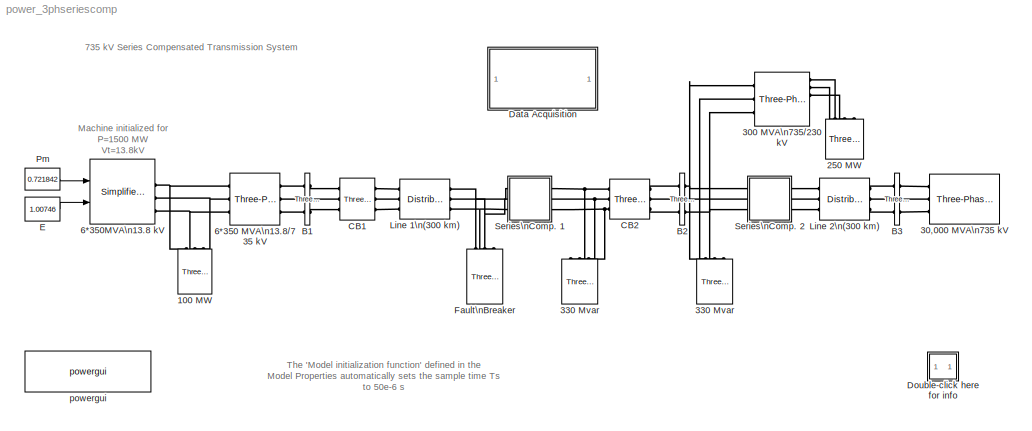
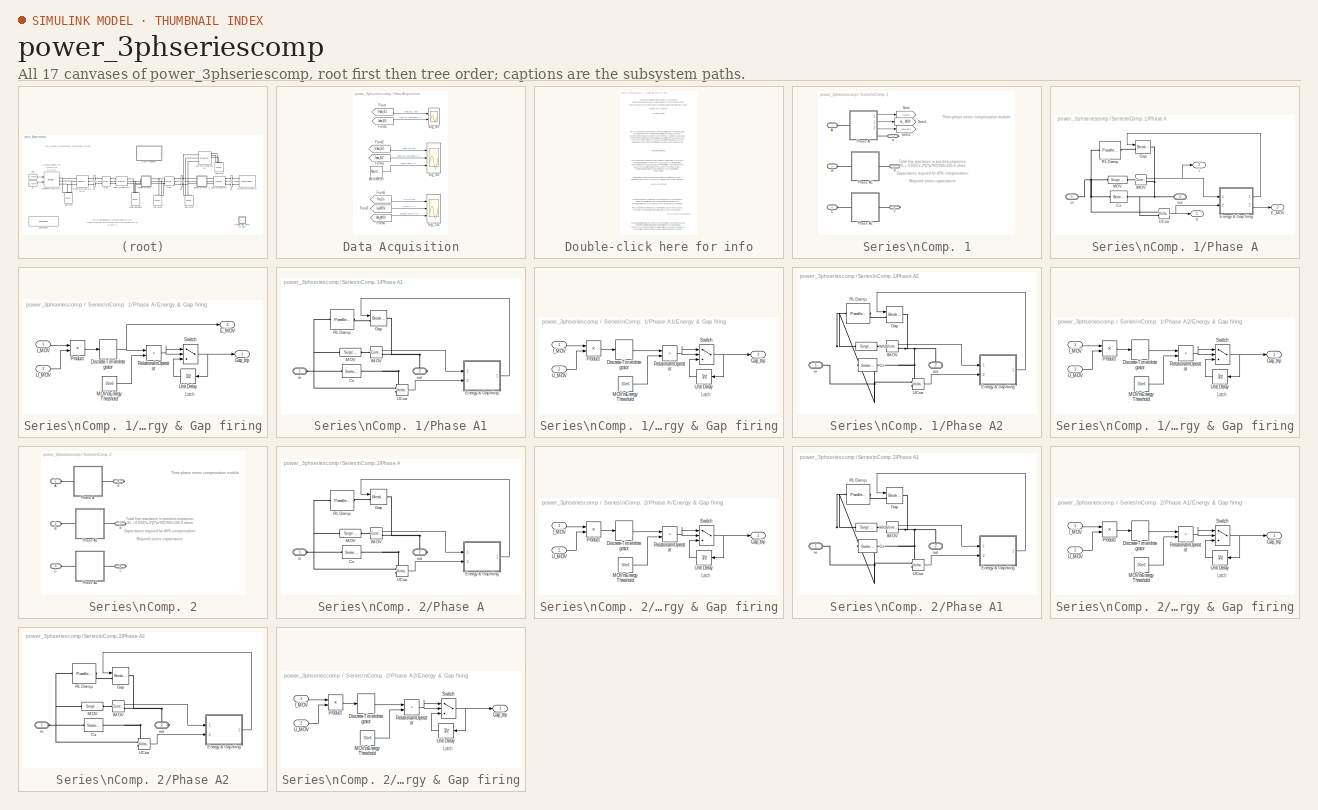
[diagram: thumbnail index - all 17 canvases of the model, root first then tree order]
MODEL power_3phseriescomp
KIND model
CONFIG InitFcn = Ts=50e-6;
BLOCK [Reference] 100 MW  REF=powerlib/Elements/Three-Phase\nSeries RLC Load
  ActivePower = 100e6
  AttributesFormatString = \\n
  CapacitivePower = 0
  Configuration = Y (grounded)
  InductivePower = 0
  LConnTagsString = A|B|C
  LeftPortType = p1
  Measurements = None
  NominalFrequency = 60
  NominalVoltage = 13.8e3
  PhysicalDomain = powersysdomain
  Ports = [0, 0, 0, 0, 0, 3]
  RightPortType = p1
  SourceBlock = powerlib/Elements/Three-Phase\nSeries RLC Load
  SourceType = Three-Phase Series RLC Load
  SubClassName = unknown
BLOCK [Reference] 250 MW  REF=powerlib/Elements/Three-Phase\nSeries RLC Load
  ActivePower = 250e6
  AttributesFormatString = \\n
  CapacitivePower = 0
  Configuration = Y (grounded)
  InductivePower = 0
  LConnTagsString = A|B|C
  LeftPortType = p1
  Measurements = None
  NominalFrequency = 60
  NominalVoltage = 230e3
  PhysicalDomain = powersysdomain
  Ports = [0, 0, 0, 0, 0, 3]
  RightPortType = p1
  SourceBlock = powerlib/Elements/Three-Phase\nSeries RLC Load
  SourceType = Three-Phase Series RLC Load
  SubClassName = unknown
BLOCK [Reference] 30,000 MVA\n735 kV  REF=powerlib/Electrical\nSources/Three-Phase Source
  BaseVoltage = 735e3
  Frequency = 60
  Inductance = 735^2/30000/377
  InternalConnection = Yg
  PhaseAngle = 0
  Ports = [0, 0, 0, 0, 0, 0, 3]
  Resistance = 735^2/30000/10
  ShortCircuitLevel = 30000e6
  ShowPortLabels = on
  SourceBlock = powerlib/Electrical\nSources/Three-Phase Source
  SourceType = Three-Phase Source
  SpecifyImpedance = on
  Voltage = 735e3
  XRratio = 10
BLOCK [Reference] 300 MVA\n735//230 kV  REF=powerlib/Elements/Three-Phase\nTransformer\n(Three Windings)
  AttributesFormatString = \\n
  DataFile = 'hysteresis'
  Hysteresis = off
  InitialFluxes = [-1.02651077007071 0.48004961184079 0.546461158229956]
  Lm = 1000
  Measurements = None
  NominalPower = [ 300e6 , 60 ]
  Ports = [0, 0, 0, 0, 0, 3, 6]
  Rm = 500
  Saturation = [  0,0  ;  0.0012,1.2  ;  1.0,1.45 ]
  SetInitialFlux = off
  SetSaturation = on
  ShowPortLabels = on
  SourceBlock = powerlib/Elements/Three-Phase\nTransformer\n(Three Windings)
  SourceType = Three-Phase Transformer (Three Windings)
  TransfoNumber = 0
  Winding1 = [ 735e3 , 0.002 , 0.15 ]
  Winding1Connection = Yg
  Winding2 = [ 230e3 , 0.002 , 0 ]
  Winding2Connection = Yg
  Winding3 = [ 25e3 , 0.05 , 0.20 ]
  Winding3Connection = Delta (D1)
BLOCK [Reference] 330 Mvar  REF=powerlib/Elements/Three-Phase\nSeries RLC Load
  ActivePower = 330e6/250
  AttributesFormatString = \\n
  CapacitivePower = 0
  Configuration = Y (grounded)
  InductivePower = 330e6
  LConnTagsString = A|B|C
  LeftPortType = p1
  Measurements = None
  NominalFrequency = 60
  NominalVoltage = 735e3
  PhysicalDomain = powersysdomain
  Ports = [0, 0, 0, 0, 0, 3]
  RightPortType = p1
  SourceBlock = powerlib/Elements/Three-Phase\nSeries RLC Load
  SourceType = Three-Phase Series RLC Load
  SubClassName = unknown
BLOCK [Reference] 330 Mvar   REF=powerlib/Elements/Three-Phase\nSeries RLC Load
  ActivePower = 330e6/250
  AttributesFormatString = \\n
  CapacitivePower = 0
  Configuration = Y (grounded)
  InductivePower = 330e6
  LConnTagsString = A|B|C
  LeftPortType = p1
  Measurements = None
  NominalFrequency = 60
  NominalVoltage = 735e3
  PhysicalDomain = powersysdomain
  Ports = [0, 0, 0, 0, 0, 3]
  RightPortType = p1
  SourceBlock = powerlib/Elements/Three-Phase\nSeries RLC Load
  SourceType = Three-Phase Series RLC Load
  SubClassName = unknown
BLOCK [Reference] 6*350 MVA\n13.8//735 kV  REF=powerlib/Elements/Three-Phase\nTransformer\n(Two Windings)
  AttributesFormatString = \\n
  DataFile = 'hysteresis'
  Hysteresis = off
  InitialFluxes = [ 0.8 , -0.8 , 0.7 ]
  Lm = 500
  Measurements = None
  NominalPower = [ 6*350e6 , 60 ]
  Ports = [0, 0, 0, 0, 0, 3, 3]
  Rm = 500
  Saturation = [ 0,0 ; 0.0024,1.2 ; 1.0,1.52 ]
  SetInitialFlux = off
  SetSaturation = off
  ShowPortLabels = on
  SourceBlock = powerlib/Elements/Three-Phase\nTransformer\n(Two Windings)
  SourceType = Three-Phase Transformer (Two Windings)
  TransfoNumber = 0
  Winding1 = [ 13.8e3 , 0.002 , 0.08 ]
  Winding1Connection = Delta (D1)
  Winding2 = [ 735e3 , 0.002 , 0.08 ]
  Winding2Connection = Yg
BLOCK [Reference] 6*350MVA\n13.8 kV  REF=powerlib/Machines/Simplified Synchronous\nMachine pu Units
  AttributesFormatString = \\n
  ConnectionType = 3-wire Y
  InitialConditions = [0 3.29695 0.717757 0.717757 0.717757 -0.0992806 -120.099 119.901]
  InternalRL = [ 0.22/15  0.22 ]
  LoadFlowParameters = [1,0,0,0,0]
  Mechanical = [ inf,0,2 ]
  NominalParameters = [ 6*350e6 13.8e3  60 ]
  Ports = [2, 1, 0, 0, 0, 0, 3]
  ShowPortLabels = on
  SourceBlock = powerlib/Machines/Simplified Synchronous\nMachine pu Units
  SourceType = Simplified Synchronous Machine
  Units = 0
BLOCK [Reference] B1  REF=powerlib/Measurements/Three-Phase\nV-I Measurement
  CurrentMeasurement = yes
  Ipu = on
  LabelI = Iabc_B1
  LabelV = Vabc_B1
  OutputType = Complex
  PSBequivalent = 0
  Pbase = 100e6
  PhasorSimulation = off
  Ports = [0, 0, 0, 0, 0, 3, 3]
  SetLabelI = on
  SetLabelV = on
  ShowPortLabels = on
  SourceBlock = powerlib/Measurements/Three-Phase\nV-I Measurement
  SourceType = Three-Phase VI Measurement
  Vbase = 735e3
  VoltageMeasurement = phase-to-ground
  Vpu = on
BLOCK [Reference] B2  REF=powerlib/Measurements/Three-Phase\nV-I Measurement
  CurrentMeasurement = yes
  Ipu = on
  LabelI = Iabc_B2
  LabelV = Vabc_B2
  OutputType = Complex
  PSBequivalent = 0
  Pbase = 100e6
  PhasorSimulation = off
  Ports = [0, 0, 0, 0, 0, 3, 3]
  SetLabelI = on
  SetLabelV = on
  ShowPortLabels = on
  SourceBlock = powerlib/Measurements/Three-Phase\nV-I Measurement
  SourceType = Three-Phase VI Measurement
  Vbase = 735e3
  VoltageMeasurement = phase-to-ground
  Vpu = on
BLOCK [Reference] B3  REF=powerlib/Measurements/Three-Phase\nV-I Measurement
  CurrentMeasurement = no
  Ipu = on
  LabelI = Iabc_B3
  LabelV = Vabc_B3
  OutputType = Complex
  PSBequivalent = 0
  Pbase = 100e6
  PhasorSimulation = off
  Ports = [0, 0, 0, 0, 0, 3, 3]
  SetLabelI = on
  SetLabelV = on
  ShowPortLabels = on
  SourceBlock = powerlib/Measurements/Three-Phase\nV-I Measurement
  SourceType = Three-Phase VI Measurement
  Vbase = 735e3
  VoltageMeasurement = no
  Vpu = on
BLOCK [Reference] CB1  REF=powerlib/Elements/Three-Phase Breaker
  AttributesFormatString = \\n
  BreakerResistance = 0.001
  External = off
  InitialState = closed
  Measurements = None
  Ports = [0, 0, 0, 0, 0, 3, 3]
  ShowPortLabels = on
  SnubberCapacitance = inf
  SnubberResistance = 1e5
  SourceBlock = powerlib/Elements/Three-Phase Breaker
  SourceType = Three-Phase Breaker
  SwitchA = on
  SwitchB = on
  SwitchC = on
  SwitchTimes = [5/60  ]
BLOCK [Reference] CB2  REF=powerlib/Elements/Three-Phase Breaker
  AttributesFormatString = \\n
  BreakerResistance = 0.001
  External = off
  InitialState = closed
  Measurements = None
  Ports = [0, 0, 0, 0, 0, 3, 3]
  ShowPortLabels = on
  SnubberCapacitance = inf
  SnubberResistance = 1e5
  SourceBlock = powerlib/Elements/Three-Phase Breaker
  SourceType = Three-Phase Breaker
  SwitchA = on
  SwitchB = on
  SwitchC = on
  SwitchTimes = [5/60  ]
BLOCK [SubSystem] Data Acquisition
  MaskDisplay = disp('Open this block\\nto visualize\\nrecorded signals')
  MaskIconFrame = on
  MaskIconOpaque = on
  MaskIconRotate = none
  MaskIconUnits = autoscale
  MaskType = Data Acquisition
  MinAlgLoopOccurrences = off
  Ports = []
  RTWSystemCode = Auto
  TreatAsAtomicUnit = off
BLOCK [From] Data Acquisition/From
  CloseFcn = tagdialog Close
  DialogController = Simulink.DDGSource
  GotoTag = Vabc_B1
BLOCK [From] Data Acquisition/From1
  CloseFcn = tagdialog Close
  DialogController = Simulink.DDGSource
  GotoTag = Iabc_B1
BLOCK [From] Data Acquisition/From2
  CloseFcn = tagdialog Close
  DialogController = Simulink.DDGSource
  GotoTag = Vabc_B2
BLOCK [From] Data Acquisition/From3
  CloseFcn = tagdialog Close
  DialogController = Simulink.DDGSource
  GotoTag = Iabc_B2
BLOCK [From] Data Acquisition/From5
  CloseFcn = tagdialog Close
  DialogController = Simulink.DDGSource
  GotoTag = Va_Cs
BLOCK [From] Data Acquisition/From6
  CloseFcn = tagdialog Close
  DialogController = Simulink.DDGSource
  GotoTag = Wa_MOV
BLOCK [From] Data Acquisition/From7
  CloseFcn = tagdialog Close
  DialogController = Simulink.DDGSource
  GotoTag = Ia_MOV
BLOCK [Reference] Data Acquisition/Multimeter  REF=powerlib/Measurements/Multimeter
  AttributesFormatString = \\n
  AxesSetting = [0,0.1,-100,100]
  Display = 0
  Gain = [1 1 1]
  L = 3
  OutputType = Magnitude
  PSBOutputType = 1
  PSBequivalent = 0
  PhasorSimulation = off
  Ports = [0, 1]
  SavedBlockNames = {}
  ShowPortLabels = on
  SourceBlock = powerlib/Measurements/Multimeter
  SourceType = MultimeterPSB
  Tag = PoWeRsYsTeMmEaSuReMeNt
  sel = [1 2 3]
  yselected = {'Ib: Fault Breaker/Fault A','Ib: Fault Breaker/Fault B','Ib: Fault Breaker/Fault C'};
BLOCK [Scope] Data Acquisition/Sig_B1
  DataFormat = StructureWithTime
  LimitDataPoints = off
  NumInputPorts = 2
  Ports = [2]
  SampleInput = on
  SampleTime = Ts
  SaveName = Sig_B1
  SaveToWorkspace = on
  TimeRange = 0.2
  YMax = 1.5~40
  YMin = -1.5~-20
BLOCK [Scope] Data Acquisition/Sig_B2
  DataFormat = StructureWithTime
  LimitDataPoints = off
  NumInputPorts = 3
  Ports = [3]
  SampleInput = on
  SampleTime = Ts
  SaveName = Sig_B2
  SaveToWorkspace = on
  TimeRange = 0.2
  YMax = 4~100~20000
  YMin = -2~-100~-10000
BLOCK [Scope] Data Acquisition/Sig_Cs1
  DataFormat = StructureWithTime
  LimitDataPoints = off
  NumInputPorts = 3
  Ports = [3]
  SampleInput = on
  SampleTime = Ts
  SaveName = Sig_Cs1
  SaveToWorkspace = on
  TimeRange = 0.2
  YMax = 300000~15000~4e+007
  YMin = -300000~-10000~0
  ZoomMode = yonly
BLOCK [SubSystem] Double-click here for info
  MaskDisplay = disp('?')
  MaskIconFrame = on
  MaskIconOpaque = on
  MaskIconRotate = none
  MaskIconUnits = autoscale
  MinAlgLoopOccurrences = off
  Ports = []
  RTWSystemCode = Auto
  TreatAsAtomicUnit = off
BLOCK [Constant] E
  Value = 1.00746
BLOCK [Reference] Fault\nBreaker  REF=powerlib/Elements/Three-Phase Fault
  External = off
  FaultA = on
  FaultB = off
  FaultC = off
  FaultResistance = 0.001
  GroundFault = on
  GroundResistance = 1
  InitialStates = [0 0 1]
  Measurements = Fault currents
  Ports = [0, 0, 0, 0, 0, 3]
  ShowPortLabels = on
  SnubberCapacitance = inf
  SnubberResistance = inf
  SourceBlock = powerlib/Elements/Three-Phase Fault
  SourceType = Three-Phase Fault
  SwitchStatus = [1 0]
  SwitchTimes = [ 1/60 6/60]
BLOCK [Reference] Line 1\n(300 km)  REF=powerlib/Elements/Distributed Parameters Line
  AttributesFormatString = \\n
  Capacitance = [12.74e-9 7.751e-9]
  Frequency = 60
  Inductance = [0.9337e-3  4.1264e-3]
  Length = 300
  Measurements = None
  Phases = 3
  Ports = [0, 0, 0, 0, 0, 3, 3]
  Resistance = [0.01273 0.3864]
  ShowPortLabels = on
  SourceBlock = powerlib/Elements/Distributed Parameters Line
  SourceType = Distributed Parameters Line
  x1 = [0 2.38552381946369e-008 325341.08168739 -670874.016355876;0.000339324940197445 1.66459232813684e-008 408268.627872248 -623887.123417706;0.000678649880394891 9.16458302355892e-009 484524.305378812 -566704.754576294;0.00101797482059234 1.53347643483349e-009 552861.954616155 -500261.376086399;0.00135729976078978 -6.12269001079985e-009 612164.811301234 -425642.796324084;0.00169662470098723 -1.3678800...<+48ch>
  x2 = [0 9.00972448785389e-009 143769.461527806 -735688.260633339;0.000339324940197445 6.80636344061194e-009 236449.298916992 -711335.722184491;0.000678649880394891 4.49177375626123e-009 325265.115012966 -675358.635091462;0.00101797482059234 2.10378013492283e-009 408765.494200877 -628344.931867615;0.00135729976078978 -3.18593166434968e-010 485585.884990611 -571062.903859812;0.00169662470098723 -2.735760...<+48ch>
  x3 = [0 -3.13336489994457e-011 17.2118715948375 -960.069025644473;0.000339324940197445 -3.98990747122372e-011 139.55186503984 -950.027231912677;0.000678649880394891 -4.78124753398469e-011 259.611321471236 -924.460226348765;0.00101797482059234 -5.49445311986604e-011 375.428246084106 -883.785821373223;0.00135729976078978 -6.1178691231732e-011 485.109974933712 -828.668712409695;0.00169662470098723 -6.6413...<+50ch>
  x4 = [0 1.02084477025663e-010 677.994740024314 -4520.13101941677;0.000339324940197445 1.00621023816259e-010 1249.10389719491 -4396.70345545888;0.000678649880394891 9.75132359425044e-011 1799.80037359926 -4201.42558004037;0.00101797482059234 9.28119004381258e-011 2321.08476462644 -3937.4885968238;0.00135729976078978 8.65938458688188e-011 2804.43831384126 -3609.20572698546;0.00169662470098723 7.896068681...<+46ch>
  x5 = 0.00169662470098723
BLOCK [Reference] Line 2\n(300 km)  REF=powerlib/Elements/Distributed Parameters Line
  AttributesFormatString = \\n
  Capacitance = [12.74e-9 7.751e-9]
  Frequency = 60
  Inductance = [0.9337e-3  4.1264e-3]
  Length = 300
  Measurements = None
  Phases = 3
  Ports = [0, 0, 0, 0, 0, 3, 3]
  Resistance = [0.01273 0.3864]
  ShowPortLabels = on
  SourceBlock = powerlib/Elements/Distributed Parameters Line
  SourceType = Distributed Parameters Line
  x1 = [0 8.08804650517917e-009 273412.942916167 -687639.522621092;0.000339324940197445 5.25405198368107e-009 358903.648376035 -647140.343610795;0.000678649880394891 2.3341964812726e-009 438529.20073167 -596065.687832913;0.00101797482059234 -6.23804132783442e-010 510988.370369812 -535250.21015161;0.00135729976078978 -3.57161062715755e-009 575097.039698855 -465687.748576952;0.00169662470098723 -6.46105036...<+47ch>
  x2 = [0 3.75630740865473e-010 125044.833272501 -732127.227535099;0.000339324940197445 2.83265138171218e-010 217423.39752828 -710192.586932821;0.000678649880394891 1.8627045630214e-010 306248.85910395 -676652.07864238;0.00101797482059234 8.62317687508948e-011 390069.644759583 -632053.81694795;0.00135729976078978 -1.52161062757664e-011 467515.966967491 -577126.62038956;0.00169662470098723 -1.164153218269...<+42ch>
  x3 = [0 -2.63936524665043e-011 22.3118706662993 -1296.73415864154;0.000339324940197445 -2.98432956179868e-011 187.559938160351 -1283.29090051926;0.000678649880394891 -3.28052438164469e-011 349.742927440492 -1248.87628241536;0.00101797482059234 -3.52310933196841e-011 506.210466833616 -1194.05270319403;0.00135729976078978 -3.70812012352156e-011 654.405585747377 -1119.71608210076;0.00169662470098723 -3.83...<+53ch>
  x4 = [0 4.64670787248012e-011 405.125803062547 -4180.52806228976;0.000339324940197445 4.65573009140136e-011 935.140210240407 -4094.68646807245;0.000678649880394891 4.5886690218924e-011 1449.87268720719 -3941.93008166026;0.00101797482059234 4.44662056654932e-011 1940.91154798871 -3724.7552265038;0.00135729976078978 4.23190606131446e-011 2400.23230436467 -3446.71094363859;0.00169662470098723 3.9480343405...<+45ch>
  x5 = 0.00169662470098723
BLOCK [Constant] Pm
  Value = 0.721842
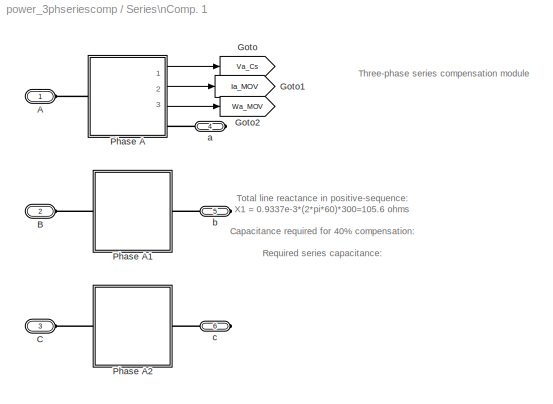
BLOCK [SubSystem] Series\nComp. 1
  MaskDisplay = plot(0,0,100,100,[25 45],[50 50], [45 45],[35 65],[55 55],[35 65], [55 75],[50 50])
  MaskIconFrame = on
  MaskIconOpaque = off
  MaskIconRotate = none
  MaskIconUnits = autoscale
  MinAlgLoopOccurrences = off
  Ports = [0, 0, 0, 0, 0, 3, 3]
  RTWSystemCode = Auto
  TreatAsAtomicUnit = off
BLOCK [PMIOPort] Series\nComp. 1/A
  Port = 1
  Side = Left
BLOCK [PMIOPort] Series\nComp. 1/B
  Port = 2
  Side = Left
BLOCK [PMIOPort] Series\nComp. 1/C
  Port = 3
  Side = Left
BLOCK [Goto] Series\nComp. 1/Goto
  DialogController = Simulink.DDGSource
  GotoTag = Va_Cs
  TagVisibility = global
BLOCK [Goto] Series\nComp. 1/Goto1
  DialogController = Simulink.DDGSource
  GotoTag = Ia_MOV
  TagVisibility = global
BLOCK [Goto] Series\nComp. 1/Goto2
  DialogController = Simulink.DDGSource
  GotoTag = Wa_MOV
  TagVisibility = global
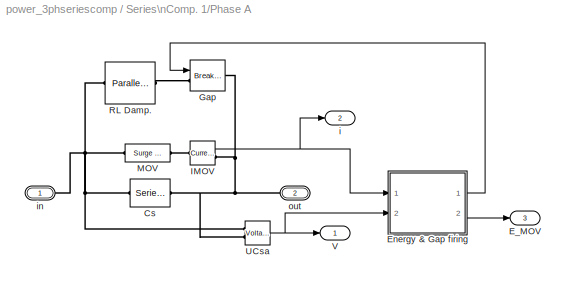
BLOCK [SubSystem] Series\nComp. 1/Phase A
  MinAlgLoopOccurrences = off
  Ports = [0, 3, 0, 0, 0, 1, 1]
  RTWSystemCode = Auto
  TreatAsAtomicUnit = off
BLOCK [Reference] Series\nComp. 1/Phase A/Cs  REF=powerlib/Elements/Series RLC Branch
  AttributesFormatString = \\n
  Capacitance = 62.8e-6
  Inductance = 0
  LConnTagsString = __new0
  LeftPortType = p1
  Measurements = None
  PhysicalDomain = powersysdomain
  Ports = [0, 0, 0, 0, 0, 1, 1]
  RConnTagsString = __new0
  Resistance = 0
  RightPortType = p1
  SourceBlock = powerlib/Elements/Series RLC Branch
  SourceType = Series RLC Branch
  SubClassName = unknown
BLOCK [Outport] Series\nComp. 1/Phase A/E_MOV
  BusOutputAsStruct = off
  IconDisplay = Port number
  Port = 3
BLOCK [SubSystem] Series\nComp. 1/Phase A/Energy & Gap firing
  MinAlgLoopOccurrences = off
  Ports = [2, 2]
  RTWSystemCode = Auto
  TreatAsAtomicUnit = off
BLOCK [DiscreteIntegrator] Series\nComp. 1/Phase A/Energy & Gap firing/Discrete-Time\nIntegrator
  ExternalReset = none
  ICPrevOutput = DiscIntNeverNeededParam
  ICPrevScaledInput = DiscIntNeverNeededParam
  InitialConditionSource = internal
  IntegratorMethod = Integration: Forward Euler
  Ports = [1, 1]
  SampleTime = Ts
BLOCK [Outport] Series\nComp. 1/Phase A/Energy & Gap firing/E_MOV
  BusOutputAsStruct = off
  IconDisplay = Port number
  InitialOutput = 0
  Port = 2
BLOCK [Outport] Series\nComp. 1/Phase A/Energy & Gap firing/Gap_trip
  BusOutputAsStruct = off
  IconDisplay = Port number
BLOCK [Inport] Series\nComp. 1/Phase A/Energy & Gap firing/I_MOV
  IconDisplay = Port number
  LatchInput = off
  Port = 1
BLOCK [Constant] Series\nComp. 1/Phase A/Energy & Gap firing/MOV\nEnergy Threshold
  Value = 30e6
BLOCK [Product] Series\nComp. 1/Phase A/Energy & Gap firing/Product
  Ports = [2, 1]
  RndMeth = Floor
BLOCK [RelationalOperator] Series\nComp. 1/Phase A/Energy & Gap firing/Relational\nOperator
  Operator = >
  ZeroCross = off
BLOCK [Switch] Series\nComp. 1/Phase A/Energy & Gap firing/Switch
  SaturateOnIntegerOverflow = off
  Threshold = 0.5
  ZeroCross = off
BLOCK [Inport] Series\nComp. 1/Phase A/Energy & Gap firing/U_MOV
  IconDisplay = Port number
  LatchInput = off
  Port = 2
BLOCK [UnitDelay] Series\nComp. 1/Phase A/Energy & Gap firing/Unit Delay
  SampleTime = Ts
BLOCK [Reference] Series\nComp. 1/Phase A/Gap  REF=powerlib/Elements/Breaker
  AttributesFormatString = \\n
  BreakerResistance = 0.001
  External = on
  InitialState = 0
  Measurements = None
  Ports = [1, 0, 0, 0, 0, 1, 1]
  ShowPortLabels = on
  SnubberCapacitance = 0
  SnubberResistance = inf
  SourceBlock = powerlib/Elements/Breaker
  SourceType = Breaker
  SwitchingTimes = [ 4/60  5/60 ]
BLOCK [Reference] Series\nComp. 1/Phase A/IMOV  REF=powerlib/Measurements/Current Measurement
  AttributesFormatString = \\n
  OutputType = Magnitude
  PSBequivalent = 0
  PhasorSimulation = off
  Ports = [0, 1, 0, 0, 0, 1, 1]
  ShowPortLabels = on
  SourceBlock = powerlib/Measurements/Current Measurement
  SourceType = Current Measurement
  Tag = PoWeRsYsTeMmEaSuReMeNt
BLOCK [Reference] Series\nComp. 1/Phase A/MOV  REF=powerlib/Elements/Surge Arrester
  AttributesFormatString = \\n
  BreakLoop = on
  Columns = 60
  Measurements = None
  MoreParameters = off
  Ports = [0, 0, 0, 0, 0, 1, 1]
  ProtectionVoltage = 298.7e+03
  ReferenceCurrent = 500
  Segment1 = [.955 50]
  Segment2 = [1.0 25]
  Segment3 = [.9915 16.5]
  ShowPortLabels = on
  SourceBlock = powerlib/Elements/Surge Arrester
  SourceType = Surge Arrester
BLOCK [Reference] Series\nComp. 1/Phase A/RL Damp.  REF=powerlib/Elements/Parallel RLC Branch
  AttributesFormatString = \\n
  Capacitance = 0
  Inductance = 1.7e-3
  LConnTagsString = a
  LeftPortType = p1
  Measurements = None
  PhysicalDomain = powersysdomain
  Ports = [0, 0, 0, 0, 0, 1, 1]
  RConnTagsString = __new0
  Resistance = 7.5
  RightPortType = p1
  SourceBlock = powerlib/Elements/Parallel RLC Branch
  SourceType = Parallel RLC Branch
  SubClassName = unknown
BLOCK [Reference] Series\nComp. 1/Phase A/UCsa  REF=powerlib/Measurements/Voltage Measurement
  AttributesFormatString = \\n
  OutputType = Magnitude
  PSBequivalent = 0
  PhasorSimulation = off
  Ports = [0, 1, 0, 0, 0, 2]
  ShowPortLabels = on
  SourceBlock = powerlib/Measurements/Voltage Measurement
  SourceType = Voltage Measurement
  Tag = PoWeRsYsTeMmEaSuReMeNt
BLOCK [Outport] Series\nComp. 1/Phase A/V
  BusOutputAsStruct = off
  IconDisplay = Port number
BLOCK [Outport] Series\nComp. 1/Phase A/i
  BusOutputAsStruct = off
  IconDisplay = Port number
  Port = 2
BLOCK [PMIOPort] Series\nComp. 1/Phase A/in
  Port = 1
  Side = Left
BLOCK [PMIOPort] Series\nComp. 1/Phase A/out 
  Port = 2
  Side = Right
BLOCK [SubSystem] Series\nComp. 1/Phase A1
  MinAlgLoopOccurrences = off
  Ports = [0, 0, 0, 0, 0, 1, 1]
  RTWSystemCode = Auto
  TreatAsAtomicUnit = off
BLOCK [Reference] Series\nComp. 1/Phase A1/Cs  REF=powerlib/Elements/Series RLC Branch
  AttributesFormatString = \\n
  Capacitance = 62.8e-6
  Inductance = 0
  LConnTagsString = __new0
  LeftPortType = p1
  Measurements = None
  PhysicalDomain = powersysdomain
  Ports = [0, 0, 0, 0, 0, 1, 1]
  RConnTagsString = __new0
  Resistance = 0
  RightPortType = p1
  SourceBlock = powerlib/Elements/Series RLC Branch
  SourceType = Series RLC Branch
  SubClassName = unknown
BLOCK [SubSystem] Series\nComp. 1/Phase A1/Energy & Gap firing
  MinAlgLoopOccurrences = off
  Ports = [2, 1]
  RTWSystemCode = Auto
  TreatAsAtomicUnit = off
BLOCK [DiscreteIntegrator] Series\nComp. 1/Phase A1/Energy & Gap firing/Discrete-Time\nIntegrator
  ExternalReset = none
  ICPrevOutput = DiscIntNeverNeededParam
  ICPrevScaledInput = DiscIntNeverNeededParam
  InitialConditionSource = internal
  IntegratorMethod = Integration: Forward Euler
  Ports = [1, 1]
  SampleTime = Ts
BLOCK [Outport] Series\nComp. 1/Phase A1/Energy & Gap firing/Gap_trip
  BusOutputAsStruct = off
  IconDisplay = Port number
BLOCK [Inport] Series\nComp. 1/Phase A1/Energy & Gap firing/I_MOV
  IconDisplay = Port number
  LatchInput = off
  Port = 1
BLOCK [Constant] Series\nComp. 1/Phase A1/Energy & Gap firing/MOV\nEnergy Threshold
  Value = 30e6
BLOCK [Product] Series\nComp. 1/Phase A1/Energy & Gap firing/Product
  Ports = [2, 1]
  RndMeth = Floor
BLOCK [RelationalOperator] Series\nComp. 1/Phase A1/Energy & Gap firing/Relational\nOperator
  Operator = >
  ZeroCross = off
BLOCK [Switch] Series\nComp. 1/Phase A1/Energy & Gap firing/Switch
  SaturateOnIntegerOverflow = off
  Threshold = 0.5
  ZeroCross = off
BLOCK [Inport] Series\nComp. 1/Phase A1/Energy & Gap firing/U_MOV
  IconDisplay = Port number
  LatchInput = off
  Port = 2
BLOCK [UnitDelay] Series\nComp. 1/Phase A1/Energy & Gap firing/Unit Delay
  SampleTime = Ts
BLOCK [Reference] Series\nComp. 1/Phase A1/Gap  REF=powerlib/Elements/Breaker
  AttributesFormatString = \\n
  BreakerResistance = 0.001
  External = on
  InitialState = 0
  Measurements = None
  Ports = [1, 0, 0, 0, 0, 1, 1]
  ShowPortLabels = on
  SnubberCapacitance = 0
  SnubberResistance = inf
  SourceBlock = powerlib/Elements/Breaker
  SourceType = Breaker
  SwitchingTimes = [ 4/60  5/60 ]
BLOCK [Reference] Series\nComp. 1/Phase A1/IMOV  REF=powerlib/Measurements/Current Measurement
  AttributesFormatString = \\n
  OutputType = Magnitude
  PSBequivalent = 0
  PhasorSimulation = off
  Ports = [0, 1, 0, 0, 0, 1, 1]
  ShowPortLabels = on
  SourceBlock = powerlib/Measurements/Current Measurement
  SourceType = Current Measurement
  Tag = PoWeRsYsTeMmEaSuReMeNt
BLOCK [Reference] Series\nComp. 1/Phase A1/MOV  REF=powerlib/Elements/Surge Arrester
  AttributesFormatString = \\n
  BreakLoop = on
  Columns = 60
  Measurements = None
  MoreParameters = off
  Ports = [0, 0, 0, 0, 0, 1, 1]
  ProtectionVoltage = 298.7e+03
  ReferenceCurrent = 500
  Segment1 = [.955 50]
  Segment2 = [1.0 25]
  Segment3 = [.9915 16.5]
  ShowPortLabels = on
  SourceBlock = powerlib/Elements/Surge Arrester
  SourceType = Surge Arrester
BLOCK [Reference] Series\nComp. 1/Phase A1/RL Damp.  REF=powerlib/Elements/Parallel RLC Branch
  AttributesFormatString = \\n
  Capacitance = 0
  Inductance = 1.7e-3
  LConnTagsString = a
  LeftPortType = p1
  Measurements = None
  PhysicalDomain = powersysdomain
  Ports = [0, 0, 0, 0, 0, 1, 1]
  RConnTagsString = __new0
  Resistance = 7.5
  RightPortType = p1
  SourceBlock = powerlib/Elements/Parallel RLC Branch
  SourceType = Parallel RLC Branch
  SubClassName = unknown
BLOCK [Reference] Series\nComp. 1/Phase A1/UCsa  REF=powerlib/Measurements/Voltage Measurement
  AttributesFormatString = \\n
  OutputType = Magnitude
  PSBequivalent = 0
  PhasorSimulation = off
  Ports = [0, 1, 0, 0, 0, 2]
  ShowPortLabels = on
  SourceBlock = powerlib/Measurements/Voltage Measurement
  SourceType = Voltage Measurement
  Tag = PoWeRsYsTeMmEaSuReMeNt
BLOCK [PMIOPort] Series\nComp. 1/Phase A1/in
  Port = 1
  Side = Left
BLOCK [PMIOPort] Series\nComp. 1/Phase A1/out 
  Port = 2
  Side = Right
BLOCK [SubSystem] Series\nComp. 1/Phase A2
  MinAlgLoopOccurrences = off
  Ports = [0, 0, 0, 0, 0, 1, 1]
  RTWSystemCode = Auto
  TreatAsAtomicUnit = off
BLOCK [Reference] Series\nComp. 1/Phase A2/Cs  REF=powerlib/Elements/Series RLC Branch
  AttributesFormatString = \\n
  Capacitance = 62.8e-6
  Inductance = 0
  LConnTagsString = __new0
  LeftPortType = p1
  Measurements = None
  PhysicalDomain = powersysdomain
  Ports = [0, 0, 0, 0, 0, 1, 1]
  RConnTagsString = __new0
  Resistance = 0
  RightPortType = p1
  SourceBlock = powerlib/Elements/Series RLC Branch
  SourceType = Series RLC Branch
  SubClassName = unknown
BLOCK [SubSystem] Series\nComp. 1/Phase A2/Energy & Gap firing
  MinAlgLoopOccurrences = off
  Ports = [2, 1]
  RTWSystemCode = Auto
  TreatAsAtomicUnit = off
BLOCK [DiscreteIntegrator] Series\nComp. 1/Phase A2/Energy & Gap firing/Discrete-Time\nIntegrator
  ExternalReset = none
  ICPrevOutput = DiscIntNeverNeededParam
  ICPrevScaledInput = DiscIntNeverNeededParam
  InitialConditionSource = internal
  IntegratorMethod = Integration: Forward Euler
  Ports = [1, 1]
  SampleTime = Ts
BLOCK [Outport] Series\nComp. 1/Phase A2/Energy & Gap firing/Gap_trip
  BusOutputAsStruct = off
  IconDisplay = Port number
BLOCK [Inport] Series\nComp. 1/Phase A2/Energy & Gap firing/I_MOV
  IconDisplay = Port number
  LatchInput = off
  Port = 1
BLOCK [Constant] Series\nComp. 1/Phase A2/Energy & Gap firing/MOV\nEnergy Threshold
  Value = 30e6
BLOCK [Product] Series\nComp. 1/Phase A2/Energy & Gap firing/Product
  Ports = [2, 1]
  RndMeth = Floor
BLOCK [RelationalOperator] Series\nComp. 1/Phase A2/Energy & Gap firing/Relational\nOperator
  Operator = >
  ZeroCross = off
BLOCK [Switch] Series\nComp. 1/Phase A2/Energy & Gap firing/Switch
  SaturateOnIntegerOverflow = off
  Threshold = 0.5
  ZeroCross = off
BLOCK [Inport] Series\nComp. 1/Phase A2/Energy & Gap firing/U_MOV
  IconDisplay = Port number
  LatchInput = off
  Port = 2
BLOCK [UnitDelay] Series\nComp. 1/Phase A2/Energy & Gap firing/Unit Delay
  SampleTime = Ts
BLOCK [Reference] Series\nComp. 1/Phase A2/Gap  REF=powerlib/Elements/Breaker
  AttributesFormatString = \\n
  BreakerResistance = 0.001
  External = on
  InitialState = 0
  Measurements = None
  Ports = [1, 0, 0, 0, 0, 1, 1]
  ShowPortLabels = on
  SnubberCapacitance = 0
  SnubberResistance = inf
  SourceBlock = powerlib/Elements/Breaker
  SourceType = Breaker
  SwitchingTimes = [ 4/60  5/60 ]
BLOCK [Reference] Series\nComp. 1/Phase A2/IMOV  REF=powerlib/Measurements/Current Measurement
  AttributesFormatString = \\n
  OutputType = Magnitude
  PSBequivalent = 0
  PhasorSimulation = off
  Ports = [0, 1, 0, 0, 0, 1, 1]
  ShowPortLabels = on
  SourceBlock = powerlib/Measurements/Current Measurement
  SourceType = Current Measurement
  Tag = PoWeRsYsTeMmEaSuReMeNt
BLOCK [Reference] Series\nComp. 1/Phase A2/MOV  REF=powerlib/Elements/Surge Arrester
  AttributesFormatString = \\n
  BreakLoop = on
  Columns = 60
  Measurements = None
  MoreParameters = off
  Ports = [0, 0, 0, 0, 0, 1, 1]
  ProtectionVoltage = 298.7e+03
  ReferenceCurrent = 500
  Segment1 = [.955 50]
  Segment2 = [1.0 25]
  Segment3 = [.9915 16.5]
  ShowPortLabels = on
  SourceBlock = powerlib/Elements/Surge Arrester
  SourceType = Surge Arrester
BLOCK [Reference] Series\nComp. 1/Phase A2/RL Damp.  REF=powerlib/Elements/Parallel RLC Branch
  AttributesFormatString = \\n
  Capacitance = 0
  Inductance = 1.7e-3
  LConnTagsString = a
  LeftPortType = p1
  Measurements = None
  PhysicalDomain = powersysdomain
  Ports = [0, 0, 0, 0, 0, 1, 1]
  RConnTagsString = __new0
  Resistance = 7.5
  RightPortType = p1
  SourceBlock = powerlib/Elements/Parallel RLC Branch
  SourceType = Parallel RLC Branch
  SubClassName = unknown
BLOCK [Reference] Series\nComp. 1/Phase A2/UCsa  REF=powerlib/Measurements/Voltage Measurement
  AttributesFormatString = \\n
  OutputType = Magnitude
  PSBequivalent = 0
  PhasorSimulation = off
  Ports = [0, 1, 0, 0, 0, 2]
  ShowPortLabels = on
  SourceBlock = powerlib/Measurements/Voltage Measurement
  SourceType = Voltage Measurement
  Tag = PoWeRsYsTeMmEaSuReMeNt
BLOCK [PMIOPort] Series\nComp. 1/Phase A2/in
  Port = 1
  Side = Left
BLOCK [PMIOPort] Series\nComp. 1/Phase A2/out 
  Port = 2
  Side = Right
BLOCK [PMIOPort] Series\nComp. 1/a
  Port = 4
  Side = Right
BLOCK [PMIOPort] Series\nComp. 1/b
  Port = 5
  Side = Right
BLOCK [PMIOPort] Series\nComp. 1/c
  Port = 6
  Side = Right
BLOCK [SubSystem] Series\nComp. 2
  MaskDisplay = plot(0,0,100,100,[25 45],[50 50], [45 45],[35 65],[55 55],[35 65], [55 75],[50 50])
  MaskIconFrame = on
  MaskIconOpaque = off
  MaskIconRotate = none
  MaskIconUnits = autoscale
  MinAlgLoopOccurrences = off
  Ports = [0, 0, 0, 0, 0, 3, 3]
  RTWSystemCode = Auto
  TreatAsAtomicUnit = off
BLOCK [PMIOPort] Series\nComp. 2/A
  Port = 1
  Side = Left
BLOCK [PMIOPort] Series\nComp. 2/B
  Port = 2
  Side = Left
BLOCK [PMIOPort] Series\nComp. 2/C
  Port = 3
  Side = Left
BLOCK [SubSystem] Series\nComp. 2/Phase A
  MinAlgLoopOccurrences = off
  Ports = [0, 0, 0, 0, 0, 1, 1]
  RTWSystemCode = Auto
  TreatAsAtomicUnit = off
BLOCK [Reference] Series\nComp. 2/Phase A/Cs  REF=powerlib/Elements/Series RLC Branch
  AttributesFormatString = \\n
  Capacitance = 62.8e-6
  Inductance = 0
  LConnTagsString = __new0
  LeftPortType = p1
  Measurements = None
  PhysicalDomain = powersysdomain
  Ports = [0, 0, 0, 0, 0, 1, 1]
  RConnTagsString = __new0
  Resistance = 0
  RightPortType = p1
  SourceBlock = powerlib/Elements/Series RLC Branch
  SourceType = Series RLC Branch
  SubClassName = unknown
BLOCK [SubSystem] Series\nComp. 2/Phase A/Energy & Gap firing
  MinAlgLoopOccurrences = off
  Ports = [2, 1]
  RTWSystemCode = Auto
  TreatAsAtomicUnit = off
BLOCK [DiscreteIntegrator] Series\nComp. 2/Phase A/Energy & Gap firing/Discrete-Time\nIntegrator
  ExternalReset = none
  ICPrevOutput = DiscIntNeverNeededParam
  ICPrevScaledInput = DiscIntNeverNeededParam
  InitialConditionSource = internal
  IntegratorMethod = Integration: Forward Euler
  Ports = [1, 1]
  SampleTime = Ts
BLOCK [Outport] Series\nComp. 2/Phase A/Energy & Gap firing/Gap_trip
  BusOutputAsStruct = off
  IconDisplay = Port number
BLOCK [Inport] Series\nComp. 2/Phase A/Energy & Gap firing/I_MOV
  IconDisplay = Port number
  LatchInput = off
  Port = 1
BLOCK [Constant] Series\nComp. 2/Phase A/Energy & Gap firing/MOV\nEnergy Threshold
  Value = 30e6
BLOCK [Product] Series\nComp. 2/Phase A/Energy & Gap firing/Product
  Ports = [2, 1]
  RndMeth = Floor
BLOCK [RelationalOperator] Series\nComp. 2/Phase A/Energy & Gap firing/Relational\nOperator
  Operator = >
  ZeroCross = off
BLOCK [Switch] Series\nComp. 2/Phase A/Energy & Gap firing/Switch
  SaturateOnIntegerOverflow = off
  Threshold = 0.5
  ZeroCross = off
BLOCK [Inport] Series\nComp. 2/Phase A/Energy & Gap firing/U_MOV
  IconDisplay = Port number
  LatchInput = off
  Port = 2
BLOCK [UnitDelay] Series\nComp. 2/Phase A/Energy & Gap firing/Unit Delay
  SampleTime = Ts
BLOCK [Reference] Series\nComp. 2/Phase A/Gap  REF=powerlib/Elements/Breaker
  AttributesFormatString = \\n
  BreakerResistance = 0.001
  External = on
  InitialState = 0
  Measurements = None
  Ports = [1, 0, 0, 0, 0, 1, 1]
  ShowPortLabels = on
  SnubberCapacitance = 0
  SnubberResistance = inf
  SourceBlock = powerlib/Elements/Breaker
  SourceType = Breaker
  SwitchingTimes = [ 4/60  5/60 ]
BLOCK [Reference] Series\nComp. 2/Phase A/IMOV  REF=powerlib/Measurements/Current Measurement
  AttributesFormatString = \\n
  OutputType = Magnitude
  PSBequivalent = 0
  PhasorSimulation = off
  Ports = [0, 1, 0, 0, 0, 1, 1]
  ShowPortLabels = on
  SourceBlock = powerlib/Measurements/Current Measurement
  SourceType = Current Measurement
  Tag = PoWeRsYsTeMmEaSuReMeNt
BLOCK [Reference] Series\nComp. 2/Phase A/MOV  REF=powerlib/Elements/Surge Arrester
  AttributesFormatString = \\n
  BreakLoop = on
  Columns = 60
  Measurements = None
  MoreParameters = off
  Ports = [0, 0, 0, 0, 0, 1, 1]
  ProtectionVoltage = 298.7e+03
  ReferenceCurrent = 500
  Segment1 = [.955 50]
  Segment2 = [1.0 25]
  Segment3 = [.9915 16.5]
  ShowPortLabels = on
  SourceBlock = powerlib/Elements/Surge Arrester
  SourceType = Surge Arrester
BLOCK [Reference] Series\nComp. 2/Phase A/RL Damp.  REF=powerlib/Elements/Parallel RLC Branch
  AttributesFormatString = \\n
  Capacitance = 0
  Inductance = 1.7e-3
  LConnTagsString = a
  LeftPortType = p1
  Measurements = None
  PhysicalDomain = powersysdomain
  Ports = [0, 0, 0, 0, 0, 1, 1]
  RConnTagsString = __new0
  Resistance = 7.5
  RightPortType = p1
  SourceBlock = powerlib/Elements/Parallel RLC Branch
  SourceType = Parallel RLC Branch
  SubClassName = unknown
BLOCK [Reference] Series\nComp. 2/Phase A/UCsa  REF=powerlib/Measurements/Voltage Measurement
  AttributesFormatString = \\n
  OutputType = Magnitude
  PSBequivalent = 0
  PhasorSimulation = off
  Ports = [0, 1, 0, 0, 0, 2]
  ShowPortLabels = on
  SourceBlock = powerlib/Measurements/Voltage Measurement
  SourceType = Voltage Measurement
  Tag = PoWeRsYsTeMmEaSuReMeNt
BLOCK [PMIOPort] Series\nComp. 2/Phase A/in
  Port = 1
  Side = Left
BLOCK [PMIOPort] Series\nComp. 2/Phase A/out 
  Port = 2
  Side = Right
BLOCK [SubSystem] Series\nComp. 2/Phase A1
  MinAlgLoopOccurrences = off
  Ports = [0, 0, 0, 0, 0, 1, 1]
  RTWSystemCode = Auto
  TreatAsAtomicUnit = off
BLOCK [Reference] Series\nComp. 2/Phase A1/Cs  REF=powerlib/Elements/Series RLC Branch
  AttributesFormatString = \\n
  Capacitance = 62.8e-6
  Inductance = 0
  LConnTagsString = __new0
  LeftPortType = p1
  Measurements = None
  PhysicalDomain = powersysdomain
  Ports = [0, 0, 0, 0, 0, 1, 1]
  RConnTagsString = __new0
  Resistance = 0
  RightPortType = p1
  SourceBlock = powerlib/Elements/Series RLC Branch
  SourceType = Series RLC Branch
  SubClassName = unknown
BLOCK [SubSystem] Series\nComp. 2/Phase A1/Energy & Gap firing
  MinAlgLoopOccurrences = off
  Ports = [2, 1]
  RTWSystemCode = Auto
  TreatAsAtomicUnit = off
BLOCK [DiscreteIntegrator] Series\nComp. 2/Phase A1/Energy & Gap firing/Discrete-Time\nIntegrator
  ExternalReset = none
  ICPrevOutput = DiscIntNeverNeededParam
  ICPrevScaledInput = DiscIntNeverNeededParam
  InitialConditionSource = internal
  IntegratorMethod = Integration: Forward Euler
  Ports = [1, 1]
  SampleTime = Ts
BLOCK [Outport] Series\nComp. 2/Phase A1/Energy & Gap firing/Gap_trip
  BusOutputAsStruct = off
  IconDisplay = Port number
BLOCK [Inport] Series\nComp. 2/Phase A1/Energy & Gap firing/I_MOV
  IconDisplay = Port number
  LatchInput = off
  Port = 1
BLOCK [Constant] Series\nComp. 2/Phase A1/Energy & Gap firing/MOV\nEnergy Threshold
  Value = 30e6
BLOCK [Product] Series\nComp. 2/Phase A1/Energy & Gap firing/Product
  Ports = [2, 1]
  RndMeth = Floor
BLOCK [RelationalOperator] Series\nComp. 2/Phase A1/Energy & Gap firing/Relational\nOperator
  Operator = >
  ZeroCross = off
BLOCK [Switch] Series\nComp. 2/Phase A1/Energy & Gap firing/Switch
  SaturateOnIntegerOverflow = off
  Threshold = 0.5
  ZeroCross = off
BLOCK [Inport] Series\nComp. 2/Phase A1/Energy & Gap firing/U_MOV
  IconDisplay = Port number
  LatchInput = off
  Port = 2
BLOCK [UnitDelay] Series\nComp. 2/Phase A1/Energy & Gap firing/Unit Delay
  SampleTime = Ts
BLOCK [Reference] Series\nComp. 2/Phase A1/Gap  REF=powerlib/Elements/Breaker
  AttributesFormatString = \\n
  BreakerResistance = 0.001
  External = on
  InitialState = 0
  Measurements = None
  Ports = [1, 0, 0, 0, 0, 1, 1]
  ShowPortLabels = on
  SnubberCapacitance = 0
  SnubberResistance = inf
  SourceBlock = powerlib/Elements/Breaker
  SourceType = Breaker
  SwitchingTimes = [ 4/60  5/60 ]
BLOCK [Reference] Series\nComp. 2/Phase A1/IMOV  REF=powerlib/Measurements/Current Measurement
  AttributesFormatString = \\n
  OutputType = Magnitude
  PSBequivalent = 0
  PhasorSimulation = off
  Ports = [0, 1, 0, 0, 0, 1, 1]
  ShowPortLabels = on
  SourceBlock = powerlib/Measurements/Current Measurement
  SourceType = Current Measurement
  Tag = PoWeRsYsTeMmEaSuReMeNt
BLOCK [Reference] Series\nComp. 2/Phase A1/MOV  REF=powerlib/Elements/Surge Arrester
  AttributesFormatString = \\n
  BreakLoop = on
  Columns = 60
  Measurements = None
  MoreParameters = off
  Ports = [0, 0, 0, 0, 0, 1, 1]
  ProtectionVoltage = 298.7e+03
  ReferenceCurrent = 500
  Segment1 = [.955 50]
  Segment2 = [1.0 25]
  Segment3 = [.9915 16.5]
  ShowPortLabels = on
  SourceBlock = powerlib/Elements/Surge Arrester
  SourceType = Surge Arrester
BLOCK [Reference] Series\nComp. 2/Phase A1/RL Damp.  REF=powerlib/Elements/Parallel RLC Branch
  AttributesFormatString = \\n
  Capacitance = 0
  Inductance = 1.7e-3
  LConnTagsString = a
  LeftPortType = p1
  Measurements = None
  PhysicalDomain = powersysdomain
  Ports = [0, 0, 0, 0, 0, 1, 1]
  RConnTagsString = __new0
  Resistance = 7.5
  RightPortType = p1
  SourceBlock = powerlib/Elements/Parallel RLC Branch
  SourceType = Parallel RLC Branch
  SubClassName = unknown
BLOCK [Reference] Series\nComp. 2/Phase A1/UCsa  REF=powerlib/Measurements/Voltage Measurement
  AttributesFormatString = \\n
  OutputType = Magnitude
  PSBequivalent = 0
  PhasorSimulation = off
  Ports = [0, 1, 0, 0, 0, 2]
  ShowPortLabels = on
  SourceBlock = powerlib/Measurements/Voltage Measurement
  SourceType = Voltage Measurement
  Tag = PoWeRsYsTeMmEaSuReMeNt
BLOCK [PMIOPort] Series\nComp. 2/Phase A1/in
  Port = 1
  Side = Left
BLOCK [PMIOPort] Series\nComp. 2/Phase A1/out 
  Port = 2
  Side = Right
BLOCK [SubSystem] Series\nComp. 2/Phase A2
  MinAlgLoopOccurrences = off
  Ports = [0, 0, 0, 0, 0, 1, 1]
  RTWSystemCode = Auto
  TreatAsAtomicUnit = off
BLOCK [Reference] Series\nComp. 2/Phase A2/Cs  REF=powerlib/Elements/Series RLC Branch
  AttributesFormatString = \\n
  Capacitance = 62.8e-6
  Inductance = 0
  LConnTagsString = __new0
  LeftPortType = p1
  Measurements = None
  PhysicalDomain = powersysdomain
  Ports = [0, 0, 0, 0, 0, 1, 1]
  RConnTagsString = __new0
  Resistance = 0
  RightPortType = p1
  SourceBlock = powerlib/Elements/Series RLC Branch
  SourceType = Series RLC Branch
  SubClassName = unknown
BLOCK [SubSystem] Series\nComp. 2/Phase A2/Energy & Gap firing
  MinAlgLoopOccurrences = off
  Ports = [2, 1]
  RTWSystemCode = Auto
  TreatAsAtomicUnit = off
BLOCK [DiscreteIntegrator] Series\nComp. 2/Phase A2/Energy & Gap firing/Discrete-Time\nIntegrator
  ExternalReset = none
  ICPrevOutput = DiscIntNeverNeededParam
  ICPrevScaledInput = DiscIntNeverNeededParam
  InitialConditionSource = internal
  IntegratorMethod = Integration: Forward Euler
  Ports = [1, 1]
  SampleTime = Ts
BLOCK [Outport] Series\nComp. 2/Phase A2/Energy & Gap firing/Gap_trip
  BusOutputAsStruct = off
  IconDisplay = Port number
BLOCK [Inport] Series\nComp. 2/Phase A2/Energy & Gap firing/I_MOV
  IconDisplay = Port number
  LatchInput = off
  Port = 1
BLOCK [Constant] Series\nComp. 2/Phase A2/Energy & Gap firing/MOV\nEnergy Threshold
  Value = 30e6
BLOCK [Product] Series\nComp. 2/Phase A2/Energy & Gap firing/Product
  Ports = [2, 1]
  RndMeth = Floor
BLOCK [RelationalOperator] Series\nComp. 2/Phase A2/Energy & Gap firing/Relational\nOperator
  Operator = >
  ZeroCross = off
BLOCK [Switch] Series\nComp. 2/Phase A2/Energy & Gap firing/Switch
  SaturateOnIntegerOverflow = off
  Threshold = 0.5
  ZeroCross = off
BLOCK [Inport] Series\nComp. 2/Phase A2/Energy & Gap firing/U_MOV
  IconDisplay = Port number
  LatchInput = off
  Port = 2
BLOCK [UnitDelay] Series\nComp. 2/Phase A2/Energy & Gap firing/Unit Delay
  SampleTime = Ts
BLOCK [Reference] Series\nComp. 2/Phase A2/Gap  REF=powerlib/Elements/Breaker
  AttributesFormatString = \\n
  BreakerResistance = 0.001
  External = on
  InitialState = 0
  Measurements = None
  Ports = [1, 0, 0, 0, 0, 1, 1]
  ShowPortLabels = on
  SnubberCapacitance = 0
  SnubberResistance = inf
  SourceBlock = powerlib/Elements/Breaker
  SourceType = Breaker
  SwitchingTimes = [ 4/60  5/60 ]
BLOCK [Reference] Series\nComp. 2/Phase A2/IMOV  REF=powerlib/Measurements/Current Measurement
  AttributesFormatString = \\n
  OutputType = Magnitude
  PSBequivalent = 0
  PhasorSimulation = off
  Ports = [0, 1, 0, 0, 0, 1, 1]
  ShowPortLabels = on
  SourceBlock = powerlib/Measurements/Current Measurement
  SourceType = Current Measurement
  Tag = PoWeRsYsTeMmEaSuReMeNt
BLOCK [Reference] Series\nComp. 2/Phase A2/MOV  REF=powerlib/Elements/Surge Arrester
  AttributesFormatString = \\n
  BreakLoop = on
  Columns = 60
  Measurements = None
  MoreParameters = off
  Ports = [0, 0, 0, 0, 0, 1, 1]
  ProtectionVoltage = 298.7e+03
  ReferenceCurrent = 500
  Segment1 = [.955 50]
  Segment2 = [1.0 25]
  Segment3 = [.9915 16.5]
  ShowPortLabels = on
  SourceBlock = powerlib/Elements/Surge Arrester
  SourceType = Surge Arrester
BLOCK [Reference] Series\nComp. 2/Phase A2/RL Damp.  REF=powerlib/Elements/Parallel RLC Branch
  AttributesFormatString = \\n
  Capacitance = 0
  Inductance = 1.7e-3
  LConnTagsString = a
  LeftPortType = p1
  Measurements = None
  PhysicalDomain = powersysdomain
  Ports = [0, 0, 0, 0, 0, 1, 1]
  RConnTagsString = __new0
  Resistance = 7.5
  RightPortType = p1
  SourceBlock = powerlib/Elements/Parallel RLC Branch
  SourceType = Parallel RLC Branch
  SubClassName = unknown
BLOCK [Reference] Series\nComp. 2/Phase A2/UCsa  REF=powerlib/Measurements/Voltage Measurement
  AttributesFormatString = \\n
  OutputType = Magnitude
  PSBequivalent = 0
  PhasorSimulation = off
  Ports = [0, 1, 0, 0, 0, 2]
  ShowPortLabels = on
  SourceBlock = powerlib/Measurements/Voltage Measurement
  SourceType = Voltage Measurement
  Tag = PoWeRsYsTeMmEaSuReMeNt
BLOCK [PMIOPort] Series\nComp. 2/Phase A2/in
  Port = 1
  Side = Left
BLOCK [PMIOPort] Series\nComp. 2/Phase A2/out 
  Port = 2
  Side = Right
BLOCK [PMIOPort] Series\nComp. 2/a
  Port = 4
  Side = Right
BLOCK [PMIOPort] Series\nComp. 2/b
  Port = 5
  Side = Right
BLOCK [PMIOPort] Series\nComp. 2/c
  Port = 6
  Side = Right
BLOCK [Reference] powergui  REF=powerlib/powergui
  DisplayStyle = off
  Frange = 0:0.5:500
  FreqAxis = off
  MaxFrequency = 1000
  Ports = []
  Priority = 2
  RmsSteady = 1
  ShowPortLabels = on
  SourceBlock = powerlib/powergui
  SourceType = PSB option menu block
  StartTime = 0.0
  Ts = Ts
  Xlog = off
  Ylog = off
  ZoomFFT = on
  cycles = 1
  display = off
  echomessages = off
  frequency = 60
  frequencyindice = 1
  frequencyindicesteady = 1
  fundamental = 60
  methode = off
  save = on
  variable = Zmes
ANNOTATION (root): 735 kV Series Compensated Transmission System
ANNOTATION (root): Machine initialized for\n P=1500 MW\n Vt=13.8kV
ANNOTATION (root): The 'Model initialization function' defined in the\nModel Properties automatically sets the sample time Ts\nto 50e-6 s
ANNOTATION Double-click here for info: (See case study 'Series Compensated Transmission Network' in the SimPowerSystems User's Guide
ANNOTATION Double-click here for info: A three-phase, 60 Hz, 735 kV power system transmitting power from a power plant consisting of six 350 MVA generators to an equivalent network through a 600 km\ntransmission line. The transmission line is split in two 300 km lines connected between buses B1,B2, and B3. In order to increase the transmission capacity, each line\nis series compensated by capacitors representing 40% of the line reactan...<+1147ch>
ANNOTATION Double-click here for info: Change the fault type to a three-phase-to-ground fault by checking Phases A, B, and C in in the Fault Breaker block. \nRestart the simulation. Notice that during the fault the energy dissipated in the MOV builds up faster that in the case of a line-to-ground fault.\nThe energy reaches the 30 MJ threshold level after 3 cycles, one cycle before opening of the line breakers. \nAs a result, the gap is...<+88ch>
ANNOTATION Double-click here for info: Circuit Description
ANNOTATION Double-click here for info: Demonstration
ANNOTATION Double-click here for info: Double click the Data Acquisition block and open the three scopes. Start the simulation. As the system has already been initialized (1500 MW generation at the 13.8 kV bus)\nwith the Lod Flow utility of the Powergui, the simulation starts in steady state. At t = 1 cycle a line-to-ground fault is applied and the fault current reaches 10 kA .\nDuring the fault, the MOV conducts at every half cycle an...<+647ch>
ANNOTATION Double-click here for info: Fault and line switching:
ANNOTATION Double-click here for info: G. Sybille (Hydro-Quebec)
ANNOTATION Double-click here for info: Line-to-Ground Fault
ANNOTATION Double-click here for info: Notice that this system contains the Powergui block. In addition, when you start the system the 'power_3phseriescomp' model, the sampling time Ts = 50e-6 is \nautomatically set in your workspace. The system is therefore be discretized using a 50 microseconds sample time.
ANNOTATION Double-click here for info: This demonstration ilustrates use of three-phase blocks\nto study transients on a series-compensated 735-kV transmission system
ANNOTATION Double-click here for info: Three-Phase-to-Ground Fault
ANNOTATION Double-click here for info: You now study the transient performance of this circuit when a line-to-ground and three-phase-to-ground faults are applied on line 1.\nThe fault and the two line circuit breakers CB1 and CB2 are simulated with blocks from the three-phase library. \nOpen the dialog boxes of CB1 and CB2. See how the initial breaker status and switching times are specified. \nA line-to-ground fault is applied on phas...<+233ch>
ANNOTATION Series\nComp. 1: Three-phase series compensation module
ANNOTATION Series\nComp. 1: Total line reactance in positive-sequence:\n X1 = 0.9337e-3*(2*pi*60)*300=105.6 ohms\n\nCapacitance required for 40% compensation:\n\nRequired series capacitance: \nXc=0.4*105.6 = 42.24 ohms\nor Cs= 62.8 uF\n\nMOV protection level required to protect the capacitors\nat 2.5 timesthe nominal capacitor voltage.\n(The nominal capacitor voltage is taken at 2 kA rms line curent)\n \nUprot.= 2.5*2kA*42.2...<+19ch>
ANNOTATION Series\nComp. 1/Phase A/Energy & Gap firing: Latch
ANNOTATION Series\nComp. 1/Phase A1/Energy & Gap firing: Latch
ANNOTATION Series\nComp. 1/Phase A2/Energy & Gap firing: Latch
ANNOTATION Series\nComp. 2: Three-phase series compensation module
ANNOTATION Series\nComp. 2: Total line reactance in positive-sequence:\n X1 = 0.9337e-3*(2*pi*60)*300=105.6 ohms\n\nCapacitance required for 40% compensation:\n\nRequired series capacitance: \nXc=0.4*105.6 = 42.24 ohms\nor Cs= 62.8 uF\n\nMOV protection level required to protect the capacitors\nat 2.5 timesthe nominal capacitor voltage.\n(The nominal capacitor voltage is taken at 2 kA rms line curent)\n \nUprot.= 2.5*2kA*42.2...<+19ch>
ANNOTATION Series\nComp. 2/Phase A/Energy & Gap firing: Latch
ANNOTATION Series\nComp. 2/Phase A1/Energy & Gap firing: Latch
ANNOTATION Series\nComp. 2/Phase A2/Energy & Gap firing: Latch
LINE Data Acquisition/From1:1 -> Data Acquisition/Sig_B1:2
LINE Data Acquisition/From2:1 -> Data Acquisition/Sig_B2:1
LINE Data Acquisition/From3:1 -> Data Acquisition/Sig_B2:2
LINE Data Acquisition/From5:1 -> Data Acquisition/Sig_Cs1:1
LINE Data Acquisition/From6:1 -> Data Acquisition/Sig_Cs1:3
LINE Data Acquisition/From7:1 -> Data Acquisition/Sig_Cs1:2
LINE Data Acquisition/From:1 -> Data Acquisition/Sig_B1:1
LINE Data Acquisition/Multimeter:1 -> Data Acquisition/Sig_B2:3
LINE E:1 -> 6*350MVA\n13.8 kV:2
LINE Pm:1 -> 6*350MVA\n13.8 kV:1
NET Series\nComp. 1/Phase A/Energy & Gap firing/Discrete-Time\nIntegrator:1 -> Series\nComp. 1/Phase A/Energy & Gap firing/E_MOV:1, Series\nComp. 1/Phase A/Energy & Gap firing/Relational\nOperator:1
LINE Series\nComp. 1/Phase A/Energy & Gap firing/I_MOV:1 -> Series\nComp. 1/Phase A/Energy & Gap firing/Product:1
LINE Series\nComp. 1/Phase A/Energy & Gap firing/MOV\nEnergy Threshold:1 -> Series\nComp. 1/Phase A/Energy & Gap firing/Relational\nOperator:2
LINE Series\nComp. 1/Phase A/Energy & Gap firing/Product:1 -> Series\nComp. 1/Phase A/Energy & Gap firing/Discrete-Time\nIntegrator:1
NET Series\nComp. 1/Phase A/Energy & Gap firing/Relational\nOperator:1 -> Series\nComp. 1/Phase A/Energy & Gap firing/Switch:1, Series\nComp. 1/Phase A/Energy & Gap firing/Switch:2
NET Series\nComp. 1/Phase A/Energy & Gap firing/Switch:1 -> Series\nComp. 1/Phase A/Energy & Gap firing/Gap_trip:1, Series\nComp. 1/Phase A/Energy & Gap firing/Unit Delay:1
LINE Series\nComp. 1/Phase A/Energy & Gap firing/U_MOV:1 -> Series\nComp. 1/Phase A/Energy & Gap firing/Product:2
LINE Series\nComp. 1/Phase A/Energy & Gap firing/Unit Delay:1 -> Series\nComp. 1/Phase A/Energy & Gap firing/Switch:3
LINE Series\nComp. 1/Phase A/Energy & Gap firing:1 -> Series\nComp. 1/Phase A/Gap:1
LINE Series\nComp. 1/Phase A/Energy & Gap firing:2 -> Series\nComp. 1/Phase A/E_MOV:1
NET Series\nComp. 1/Phase A/IMOV:1 -> Series\nComp. 1/Phase A/Energy & Gap firing:1, Series\nComp. 1/Phase A/i:1
NET Series\nComp. 1/Phase A/UCsa:1 -> Series\nComp. 1/Phase A/Energy & Gap firing:2, Series\nComp. 1/Phase A/V:1
LINE Series\nComp. 1/Phase A1/Energy & Gap firing/Discrete-Time\nIntegrator:1 -> Series\nComp. 1/Phase A1/Energy & Gap firing/Relational\nOperator:1
LINE Series\nComp. 1/Phase A1/Energy & Gap firing/I_MOV:1 -> Series\nComp. 1/Phase A1/Energy & Gap firing/Product:1
LINE Series\nComp. 1/Phase A1/Energy & Gap firing/MOV\nEnergy Threshold:1 -> Series\nComp. 1/Phase A1/Energy & Gap firing/Relational\nOperator:2
LINE Series\nComp. 1/Phase A1/Energy & Gap firing/Product:1 -> Series\nComp. 1/Phase A1/Energy & Gap firing/Discrete-Time\nIntegrator:1
NET Series\nComp. 1/Phase A1/Energy & Gap firing/Relational\nOperator:1 -> Series\nComp. 1/Phase A1/Energy & Gap firing/Switch:1, Series\nComp. 1/Phase A1/Energy & Gap firing/Switch:2
NET Series\nComp. 1/Phase A1/Energy & Gap firing/Switch:1 -> Series\nComp. 1/Phase A1/Energy & Gap firing/Gap_trip:1, Series\nComp. 1/Phase A1/Energy & Gap firing/Unit Delay:1
LINE Series\nComp. 1/Phase A1/Energy & Gap firing/U_MOV:1 -> Series\nComp. 1/Phase A1/Energy & Gap firing/Product:2
LINE Series\nComp. 1/Phase A1/Energy & Gap firing/Unit Delay:1 -> Series\nComp. 1/Phase A1/Energy & Gap firing/Switch:3
LINE Series\nComp. 1/Phase A1/Energy & Gap firing:1 -> Series\nComp. 1/Phase A1/Gap:1
LINE Series\nComp. 1/Phase A1/IMOV:1 -> Series\nComp. 1/Phase A1/Energy & Gap firing:1
LINE Series\nComp. 1/Phase A1/UCsa:1 -> Series\nComp. 1/Phase A1/Energy & Gap firing:2
LINE Series\nComp. 1/Phase A2/Energy & Gap firing/Discrete-Time\nIntegrator:1 -> Series\nComp. 1/Phase A2/Energy & Gap firing/Relational\nOperator:1
LINE Series\nComp. 1/Phase A2/Energy & Gap firing/I_MOV:1 -> Series\nComp. 1/Phase A2/Energy & Gap firing/Product:1
LINE Series\nComp. 1/Phase A2/Energy & Gap firing/MOV\nEnergy Threshold:1 -> Series\nComp. 1/Phase A2/Energy & Gap firing/Relational\nOperator:2
LINE Series\nComp. 1/Phase A2/Energy & Gap firing/Product:1 -> Series\nComp. 1/Phase A2/Energy & Gap firing/Discrete-Time\nIntegrator:1
NET Series\nComp. 1/Phase A2/Energy & Gap firing/Relational\nOperator:1 -> Series\nComp. 1/Phase A2/Energy & Gap firing/Switch:1, Series\nComp. 1/Phase A2/Energy & Gap firing/Switch:2
NET Series\nComp. 1/Phase A2/Energy & Gap firing/Switch:1 -> Series\nComp. 1/Phase A2/Energy & Gap firing/Gap_trip:1, Series\nComp. 1/Phase A2/Energy & Gap firing/Unit Delay:1
LINE Series\nComp. 1/Phase A2/Energy & Gap firing/U_MOV:1 -> Series\nComp. 1/Phase A2/Energy & Gap firing/Product:2
LINE Series\nComp. 1/Phase A2/Energy & Gap firing/Unit Delay:1 -> Series\nComp. 1/Phase A2/Energy & Gap firing/Switch:3
LINE Series\nComp. 1/Phase A2/Energy & Gap firing:1 -> Series\nComp. 1/Phase A2/Gap:1
LINE Series\nComp. 1/Phase A2/IMOV:1 -> Series\nComp. 1/Phase A2/Energy & Gap firing:1
LINE Series\nComp. 1/Phase A2/UCsa:1 -> Series\nComp. 1/Phase A2/Energy & Gap firing:2
LINE Series\nComp. 1/Phase A:1 -> Series\nComp. 1/Goto:1
LINE Series\nComp. 1/Phase A:2 -> Series\nComp. 1/Goto1:1
LINE Series\nComp. 1/Phase A:3 -> Series\nComp. 1/Goto2:1
LINE Series\nComp. 2/Phase A/Energy & Gap firing/Discrete-Time\nIntegrator:1 -> Series\nComp. 2/Phase A/Energy & Gap firing/Relational\nOperator:1
LINE Series\nComp. 2/Phase A/Energy & Gap firing/I_MOV:1 -> Series\nComp. 2/Phase A/Energy & Gap firing/Product:1
LINE Series\nComp. 2/Phase A/Energy & Gap firing/MOV\nEnergy Threshold:1 -> Series\nComp. 2/Phase A/Energy & Gap firing/Relational\nOperator:2
LINE Series\nComp. 2/Phase A/Energy & Gap firing/Product:1 -> Series\nComp. 2/Phase A/Energy & Gap firing/Discrete-Time\nIntegrator:1
NET Series\nComp. 2/Phase A/Energy & Gap firing/Relational\nOperator:1 -> Series\nComp. 2/Phase A/Energy & Gap firing/Switch:1, Series\nComp. 2/Phase A/Energy & Gap firing/Switch:2
NET Series\nComp. 2/Phase A/Energy & Gap firing/Switch:1 -> Series\nComp. 2/Phase A/Energy & Gap firing/Gap_trip:1, Series\nComp. 2/Phase A/Energy & Gap firing/Unit Delay:1
LINE Series\nComp. 2/Phase A/Energy & Gap firing/U_MOV:1 -> Series\nComp. 2/Phase A/Energy & Gap firing/Product:2
LINE Series\nComp. 2/Phase A/Energy & Gap firing/Unit Delay:1 -> Series\nComp. 2/Phase A/Energy & Gap firing/Switch:3
LINE Series\nComp. 2/Phase A/Energy & Gap firing:1 -> Series\nComp. 2/Phase A/Gap:1
LINE Series\nComp. 2/Phase A/IMOV:1 -> Series\nComp. 2/Phase A/Energy & Gap firing:1
LINE Series\nComp. 2/Phase A/UCsa:1 -> Series\nComp. 2/Phase A/Energy & Gap firing:2
LINE Series\nComp. 2/Phase A1/Energy & Gap firing/Discrete-Time\nIntegrator:1 -> Series\nComp. 2/Phase A1/Energy & Gap firing/Relational\nOperator:1
LINE Series\nComp. 2/Phase A1/Energy & Gap firing/I_MOV:1 -> Series\nComp. 2/Phase A1/Energy & Gap firing/Product:1
LINE Series\nComp. 2/Phase A1/Energy & Gap firing/MOV\nEnergy Threshold:1 -> Series\nComp. 2/Phase A1/Energy & Gap firing/Relational\nOperator:2
LINE Series\nComp. 2/Phase A1/Energy & Gap firing/Product:1 -> Series\nComp. 2/Phase A1/Energy & Gap firing/Discrete-Time\nIntegrator:1
NET Series\nComp. 2/Phase A1/Energy & Gap firing/Relational\nOperator:1 -> Series\nComp. 2/Phase A1/Energy & Gap firing/Switch:1, Series\nComp. 2/Phase A1/Energy & Gap firing/Switch:2
NET Series\nComp. 2/Phase A1/Energy & Gap firing/Switch:1 -> Series\nComp. 2/Phase A1/Energy & Gap firing/Gap_trip:1, Series\nComp. 2/Phase A1/Energy & Gap firing/Unit Delay:1
LINE Series\nComp. 2/Phase A1/Energy & Gap firing/U_MOV:1 -> Series\nComp. 2/Phase A1/Energy & Gap firing/Product:2
LINE Series\nComp. 2/Phase A1/Energy & Gap firing/Unit Delay:1 -> Series\nComp. 2/Phase A1/Energy & Gap firing/Switch:3
LINE Series\nComp. 2/Phase A1/Energy & Gap firing:1 -> Series\nComp. 2/Phase A1/Gap:1
LINE Series\nComp. 2/Phase A1/IMOV:1 -> Series\nComp. 2/Phase A1/Energy & Gap firing:1
LINE Series\nComp. 2/Phase A1/UCsa:1 -> Series\nComp. 2/Phase A1/Energy & Gap firing:2
LINE Series\nComp. 2/Phase A2/Energy & Gap firing/Discrete-Time\nIntegrator:1 -> Series\nComp. 2/Phase A2/Energy & Gap firing/Relational\nOperator:1
LINE Series\nComp. 2/Phase A2/Energy & Gap firing/I_MOV:1 -> Series\nComp. 2/Phase A2/Energy & Gap firing/Product:1
LINE Series\nComp. 2/Phase A2/Energy & Gap firing/MOV\nEnergy Threshold:1 -> Series\nComp. 2/Phase A2/Energy & Gap firing/Relational\nOperator:2
LINE Series\nComp. 2/Phase A2/Energy & Gap firing/Product:1 -> Series\nComp. 2/Phase A2/Energy & Gap firing/Discrete-Time\nIntegrator:1
NET Series\nComp. 2/Phase A2/Energy & Gap firing/Relational\nOperator:1 -> Series\nComp. 2/Phase A2/Energy & Gap firing/Switch:1, Series\nComp. 2/Phase A2/Energy & Gap firing/Switch:2
NET Series\nComp. 2/Phase A2/Energy & Gap firing/Switch:1 -> Series\nComp. 2/Phase A2/Energy & Gap firing/Gap_trip:1, Series\nComp. 2/Phase A2/Energy & Gap firing/Unit Delay:1
LINE Series\nComp. 2/Phase A2/Energy & Gap firing/U_MOV:1 -> Series\nComp. 2/Phase A2/Energy & Gap firing/Product:2
LINE Series\nComp. 2/Phase A2/Energy & Gap firing/Unit Delay:1 -> Series\nComp. 2/Phase A2/Energy & Gap firing/Switch:3
LINE Series\nComp. 2/Phase A2/Energy & Gap firing:1 -> Series\nComp. 2/Phase A2/Gap:1
LINE Series\nComp. 2/Phase A2/IMOV:1 -> Series\nComp. 2/Phase A2/Energy & Gap firing:1
LINE Series\nComp. 2/Phase A2/UCsa:1 -> Series\nComp. 2/Phase A2/Energy & Gap firing:2
PNET net1: 100 MW:LConn1 -- 6*350 MVA\n13.8//735 kV:LConn1 -- 6*350MVA\n13.8 kV:RConn1
PNET net2: 100 MW:LConn2 -- 6*350 MVA\n13.8//735 kV:LConn2 -- 6*350MVA\n13.8 kV:RConn2
PNET net3: 100 MW:LConn3 -- 6*350 MVA\n13.8//735 kV:LConn3 -- 6*350MVA\n13.8 kV:RConn3
PLINE 250 MW:LConn1 -- 300 MVA\n735//230 kV:RConn1
PLINE 250 MW:LConn2 -- 300 MVA\n735//230 kV:RConn2
PLINE 250 MW:LConn3 -- 300 MVA\n735//230 kV:RConn3
PLINE 30,000 MVA\n735 kV:RConn1 -- B3:RConn1
PLINE 30,000 MVA\n735 kV:RConn2 -- B3:RConn2
PLINE 30,000 MVA\n735 kV:RConn3 -- B3:RConn3
PNET net4: 300 MVA\n735//230 kV:LConn1 -- 330 Mvar :LConn1 -- B2:RConn1 -- Series\nComp. 2:LConn1
PNET net5: 300 MVA\n735//230 kV:LConn2 -- 330 Mvar :LConn2 -- B2:RConn2 -- Series\nComp. 2:LConn2
PNET net6: 300 MVA\n735//230 kV:LConn3 -- 330 Mvar :LConn3 -- B2:RConn3 -- Series\nComp. 2:LConn3
PNET net7: 330 Mvar:LConn1 -- CB2:LConn1 -- Series\nComp. 1:RConn1
PNET net8: 330 Mvar:LConn2 -- CB2:LConn2 -- Series\nComp. 1:RConn2
PNET net9: 330 Mvar:LConn3 -- CB2:LConn3 -- Series\nComp. 1:RConn3
PLINE 6*350 MVA\n13.8//735 kV:RConn1 -- B1:LConn1
PLINE 6*350 MVA\n13.8//735 kV:RConn2 -- B1:LConn2
PLINE 6*350 MVA\n13.8//735 kV:RConn3 -- B1:LConn3
PLINE B1:RConn1 -- CB1:LConn1
PLINE B1:RConn2 -- CB1:LConn2
PLINE B1:RConn3 -- CB1:LConn3
PLINE B2:LConn1 -- CB2:RConn1
PLINE B2:LConn2 -- CB2:RConn2
PLINE B2:LConn3 -- CB2:RConn3
PLINE B3:LConn1 -- Line 2\n(300 km):RConn1
PLINE B3:LConn2 -- Line 2\n(300 km):RConn2
PLINE B3:LConn3 -- Line 2\n(300 km):RConn3
PLINE CB1:RConn1 -- Line 1\n(300 km):LConn1
PLINE CB1:RConn2 -- Line 1\n(300 km):LConn2
PLINE CB1:RConn3 -- Line 1\n(300 km):LConn3
PNET net10: Fault\nBreaker:LConn1 -- Line 1\n(300 km):RConn1 -- Series\nComp. 1:LConn1
PNET net11: Fault\nBreaker:LConn2 -- Line 1\n(300 km):RConn2 -- Series\nComp. 1:LConn2
PNET net12: Fault\nBreaker:LConn3 -- Line 1\n(300 km):RConn3 -- Series\nComp. 1:LConn3
PLINE Line 2\n(300 km):LConn1 -- Series\nComp. 2:RConn1
PLINE Line 2\n(300 km):LConn2 -- Series\nComp. 2:RConn2
PLINE Line 2\n(300 km):LConn3 -- Series\nComp. 2:RConn3
PLINE Series\nComp. 1/A:RConn1 -- Series\nComp. 1/Phase A:LConn1
PLINE Series\nComp. 1/B:RConn1 -- Series\nComp. 1/Phase A1:LConn1
PLINE Series\nComp. 1/C:RConn1 -- Series\nComp. 1/Phase A2:LConn1
PNET net13: Series\nComp. 1/Phase A/Cs:LConn1 -- Series\nComp. 1/Phase A/MOV:LConn1 -- Series\nComp. 1/Phase A/RL Damp.:LConn1 -- Series\nComp. 1/Phase A/UCsa:LConn1 -- Series\nComp. 1/Phase A/in:RConn1
PNET net14: Series\nComp. 1/Phase A/Cs:RConn1 -- Series\nComp. 1/Phase A/Gap:RConn1 -- Series\nComp. 1/Phase A/IMOV:RConn1 -- Series\nComp. 1/Phase A/UCsa:LConn2 -- Series\nComp. 1/Phase A/out :RConn1
PLINE Series\nComp. 1/Phase A/Gap:LConn1 -- Series\nComp. 1/Phase A/RL Damp.:RConn1
PLINE Series\nComp. 1/Phase A/IMOV:LConn1 -- Series\nComp. 1/Phase A/MOV:RConn1
PNET net15: Series\nComp. 1/Phase A1/Cs:LConn1 -- Series\nComp. 1/Phase A1/MOV:LConn1 -- Series\nComp. 1/Phase A1/RL Damp.:LConn1 -- Series\nComp. 1/Phase A1/UCsa:LConn1 -- Series\nComp. 1/Phase A1/in:RConn1
PNET net16: Series\nComp. 1/Phase A1/Cs:RConn1 -- Series\nComp. 1/Phase A1/Gap:RConn1 -- Series\nComp. 1/Phase A1/IMOV:RConn1 -- Series\nComp. 1/Phase A1/UCsa:LConn2 -- Series\nComp. 1/Phase A1/out :RConn1
PLINE Series\nComp. 1/Phase A1/Gap:LConn1 -- Series\nComp. 1/Phase A1/RL Damp.:RConn1
PLINE Series\nComp. 1/Phase A1/IMOV:LConn1 -- Series\nComp. 1/Phase A1/MOV:RConn1
PLINE Series\nComp. 1/Phase A1:RConn1 -- Series\nComp. 1/b:RConn1
PNET net17: Series\nComp. 1/Phase A2/Cs:LConn1 -- Series\nComp. 1/Phase A2/MOV:LConn1 -- Series\nComp. 1/Phase A2/RL Damp.:LConn1 -- Series\nComp. 1/Phase A2/UCsa:LConn1 -- Series\nComp. 1/Phase A2/in:RConn1
PNET net18: Series\nComp. 1/Phase A2/Cs:RConn1 -- Series\nComp. 1/Phase A2/Gap:RConn1 -- Series\nComp. 1/Phase A2/IMOV:RConn1 -- Series\nComp. 1/Phase A2/UCsa:LConn2 -- Series\nComp. 1/Phase A2/out :RConn1
PLINE Series\nComp. 1/Phase A2/Gap:LConn1 -- Series\nComp. 1/Phase A2/RL Damp.:RConn1
PLINE Series\nComp. 1/Phase A2/IMOV:LConn1 -- Series\nComp. 1/Phase A2/MOV:RConn1
PLINE Series\nComp. 1/Phase A2:RConn1 -- Series\nComp. 1/c:RConn1
PLINE Series\nComp. 1/Phase A:RConn1 -- Series\nComp. 1/a:RConn1
PLINE Series\nComp. 2/A:RConn1 -- Series\nComp. 2/Phase A:LConn1
PLINE Series\nComp. 2/B:RConn1 -- Series\nComp. 2/Phase A1:LConn1
PLINE Series\nComp. 2/C:RConn1 -- Series\nComp. 2/Phase A2:LConn1
PNET net19: Series\nComp. 2/Phase A/Cs:LConn1 -- Series\nComp. 2/Phase A/MOV:LConn1 -- Series\nComp. 2/Phase A/RL Damp.:LConn1 -- Series\nComp. 2/Phase A/UCsa:LConn1 -- Series\nComp. 2/Phase A/in:RConn1
PNET net20: Series\nComp. 2/Phase A/Cs:RConn1 -- Series\nComp. 2/Phase A/Gap:RConn1 -- Series\nComp. 2/Phase A/IMOV:RConn1 -- Series\nComp. 2/Phase A/UCsa:LConn2 -- Series\nComp. 2/Phase A/out :RConn1
PLINE Series\nComp. 2/Phase A/Gap:LConn1 -- Series\nComp. 2/Phase A/RL Damp.:RConn1
PLINE Series\nComp. 2/Phase A/IMOV:LConn1 -- Series\nComp. 2/Phase A/MOV:RConn1
PNET net21: Series\nComp. 2/Phase A1/Cs:LConn1 -- Series\nComp. 2/Phase A1/MOV:LConn1 -- Series\nComp. 2/Phase A1/RL Damp.:LConn1 -- Series\nComp. 2/Phase A1/UCsa:LConn1 -- Series\nComp. 2/Phase A1/in:RConn1
PNET net22: Series\nComp. 2/Phase A1/Cs:RConn1 -- Series\nComp. 2/Phase A1/Gap:RConn1 -- Series\nComp. 2/Phase A1/IMOV:RConn1 -- Series\nComp. 2/Phase A1/UCsa:LConn2 -- Series\nComp. 2/Phase A1/out :RConn1
PLINE Series\nComp. 2/Phase A1/Gap:LConn1 -- Series\nComp. 2/Phase A1/RL Damp.:RConn1
PLINE Series\nComp. 2/Phase A1/IMOV:LConn1 -- Series\nComp. 2/Phase A1/MOV:RConn1
PLINE Series\nComp. 2/Phase A1:RConn1 -- Series\nComp. 2/b:RConn1
PNET net23: Series\nComp. 2/Phase A2/Cs:LConn1 -- Series\nComp. 2/Phase A2/MOV:LConn1 -- Series\nComp. 2/Phase A2/RL Damp.:LConn1 -- Series\nComp. 2/Phase A2/UCsa:LConn1 -- Series\nComp. 2/Phase A2/in:RConn1
PNET net24: Series\nComp. 2/Phase A2/Cs:RConn1 -- Series\nComp. 2/Phase A2/Gap:RConn1 -- Series\nComp. 2/Phase A2/IMOV:RConn1 -- Series\nComp. 2/Phase A2/UCsa:LConn2 -- Series\nComp. 2/Phase A2/out :RConn1
PLINE Series\nComp. 2/Phase A2/Gap:LConn1 -- Series\nComp. 2/Phase A2/RL Damp.:RConn1
PLINE Series\nComp. 2/Phase A2/IMOV:LConn1 -- Series\nComp. 2/Phase A2/MOV:RConn1
PLINE Series\nComp. 2/Phase A2:RConn1 -- Series\nComp. 2/c:RConn1
PLINE Series\nComp. 2/Phase A:RConn1 -- Series\nComp. 2/a:RConn1
note: NET lines group one-source signal fan-out (src -> all destinations, sorted); 1:1 wires keep LINE; PNET lines group multi-terminal physical nets as a canonical sorted terminal list (undirected conserving connections); 2-terminal nets keep the pairwise PLINE form
